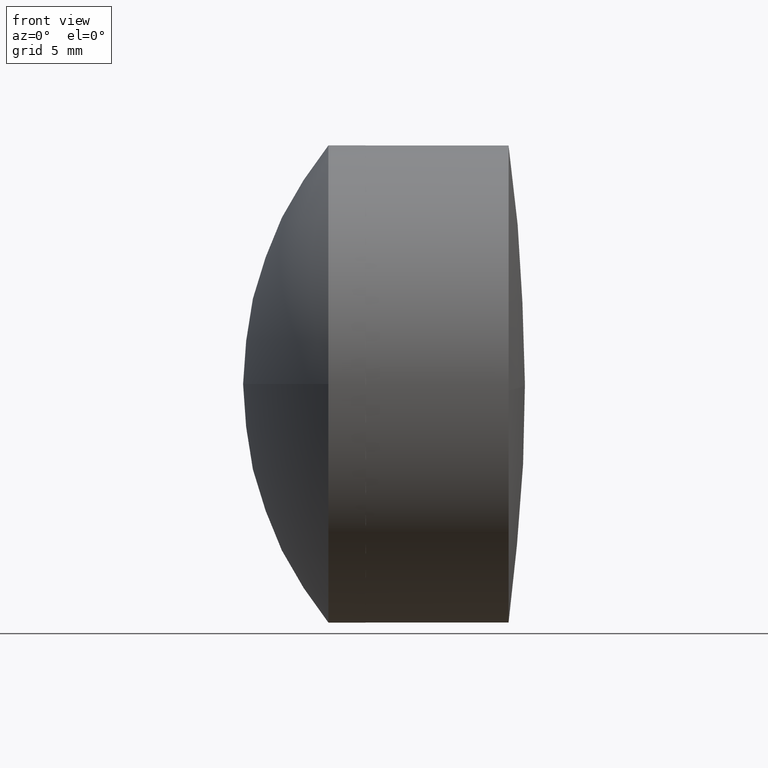
[diagram: clean part render]
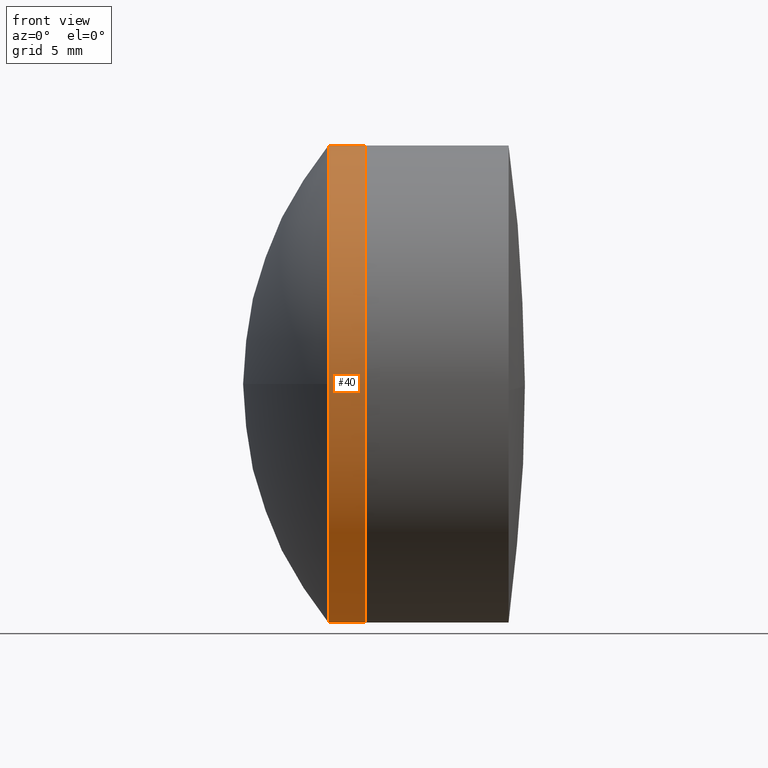
[diagram: same view with one face highlighted and labeled with its STEP entity id]
A machine part, front view. The second image highlights one B-rep face of the part: STEP entity #40.
In plain terms, the highlighted cylindrical surface (partial cylindrical patch) has radius 12.7 mm, axis along (-1, -0, -0).
Its self-contained STEP definition (entity closure, byte-faithful):
#12 = CARTESIAN_POINT ( 'NONE',  ( -33.15740189501624968, 19.33284803661706164, -1.555301434917138235E-15 ) ) ;
#13 = ORIENTED_EDGE ( 'NONE', *, *, #123, .T. ) ;
#19 = DIRECTION ( 'NONE',  ( -1.000000000000000000, -0.000000000000000000, -0.000000000000000000 ) ) ;
#20 = CIRCLE ( 'NONE', #72, 12.69999999999999929 ) ;
#26 = EDGE_CURVE ( 'NONE', #87, #283, #173, .T. ) ;
#32 = CARTESIAN_POINT ( 'NONE',  ( -33.15740189501624968, 32.03284803661706093, -12.69999999999999929 ) ) ;
#40 = ADVANCED_FACE ( 'NONE', ( #91 ), #292, .T. ) ;
#42 = DIRECTION ( 'NONE',  ( 0.000000000000000000, 0.000000000000000000, 1.000000000000000000 ) ) ;
#58 = EDGE_CURVE ( 'NONE', #237, #310, #366, .T. ) ;
#72 = AXIS2_PLACEMENT_3D ( 'NONE', #218, #152, #290 ) ;
#74 = EDGE_LOOP ( 'NONE', ( #317, #331, #13, #139, #137, #195 ) ) ;
#81 = AXIS2_PLACEMENT_3D ( 'NONE', #422, #145, #144 ) ;
#84 = CARTESIAN_POINT ( 'NONE',  ( -39.66995810697360270, 32.03284803661706093, 12.69999999999999929 ) ) ;
#87 = VERTEX_POINT ( 'NONE', #262 ) ;
#91 = FACE_OUTER_BOUND ( 'NONE', #74, .T. ) ;
#93 = AXIS2_PLACEMENT_3D ( 'NONE', #186, #118, #322 ) ;
#104 = EDGE_CURVE ( 'NONE', #237, #397, #214, .T. ) ;
#110 = EDGE_CURVE ( 'NONE', #131, #283, #251, .T. ) ;
#118 = DIRECTION ( 'NONE',  ( -1.000000000000000000, -0.000000000000000000, -0.000000000000000000 ) ) ;
#123 = EDGE_CURVE ( 'NONE', #310, #131, #20, .T. ) ;
#124 = CARTESIAN_POINT ( 'NONE',  ( -39.66995810697360270, 32.03284803661706093, -12.69999999999999929 ) ) ;
#131 = VERTEX_POINT ( 'NONE', #166 ) ;
#137 = ORIENTED_EDGE ( 'NONE', *, *, #26, .F. ) ;
#139 = ORIENTED_EDGE ( 'NONE', *, *, #110, .T. ) ;
#144 = DIRECTION ( 'NONE',  ( 0.000000000000000000, 0.000000000000000000, 1.000000000000000000 ) ) ;
#145 = DIRECTION ( 'NONE',  ( -1.000000000000000000, -0.000000000000000000, -0.000000000000000000 ) ) ;
#147 = CARTESIAN_POINT ( 'NONE',  ( -35.12901553471916571, 32.03284803661706093, 12.69999999999999929 ) ) ;
#152 = DIRECTION ( 'NONE',  ( -1.000000000000000000, -0.000000000000000000, -0.000000000000000000 ) ) ;
#156 = CARTESIAN_POINT ( 'NONE',  ( -35.12901553471916571, 32.03284803661706093, 0.000000000000000000 ) ) ;
#158 = VECTOR ( 'NONE', #426, 1000.000000000000000 ) ;
#166 = CARTESIAN_POINT ( 'NONE',  ( -33.15740189501624968, 32.03284803661706093, 12.69999999999999929 ) ) ;
#173 = CIRCLE ( 'NONE', #266, 12.69999999999999929 ) ;
#179 = DIRECTION ( 'NONE',  ( -1.000000000000000000, -0.000000000000000000, -0.000000000000000000 ) ) ;
#181 = DIRECTION ( 'NONE',  ( 0.000000000000000000, 0.000000000000000000, 1.000000000000000000 ) ) ;
#186 = CARTESIAN_POINT ( 'NONE',  ( -39.66995810697360270, 32.03284803661706093, 0.000000000000000000 ) ) ;
#195 = ORIENTED_EDGE ( 'NONE', *, *, #313, .F. ) ;
#209 = CARTESIAN_POINT ( 'NONE',  ( -35.12901553471916571, 32.03284803661706093, -12.69999999999999929 ) ) ;
#214 = LINE ( 'NONE', #124, #158 ) ;
#218 = CARTESIAN_POINT ( 'NONE',  ( -33.15740189501624968, 32.03284803661706093, 0.000000000000000000 ) ) ;
#221 = DIRECTION ( 'NONE',  ( -1.000000000000000000, -0.000000000000000000, -0.000000000000000000 ) ) ;
#224 = AXIS2_PLACEMENT_3D ( 'NONE', #226, #179, #181 ) ;
#226 = CARTESIAN_POINT ( 'NONE',  ( -33.15740189501624968, 32.03284803661706093, 0.000000000000000000 ) ) ;
#237 = VERTEX_POINT ( 'NONE', #32 ) ;
#251 = LINE ( 'NONE', #84, #401 ) ;
#262 = CARTESIAN_POINT ( 'NONE',  ( -35.12901553471916571, 19.33284803661705809, -1.555301434917138630E-15 ) ) ;
#266 = AXIS2_PLACEMENT_3D ( 'NONE', #156, #221, #42 ) ;
#283 = VERTEX_POINT ( 'NONE', #147 ) ;
#290 = DIRECTION ( 'NONE',  ( 0.000000000000000000, 0.000000000000000000, 1.000000000000000000 ) ) ;
#292 = CYLINDRICAL_SURFACE ( 'NONE', #93, 12.69999999999999929 ) ;
#310 = VERTEX_POINT ( 'NONE', #12 ) ;
#313 = EDGE_CURVE ( 'NONE', #397, #87, #369, .T. ) ;
#317 = ORIENTED_EDGE ( 'NONE', *, *, #104, .F. ) ;
#322 = DIRECTION ( 'NONE',  ( 0.000000000000000000, 0.000000000000000000, 1.000000000000000000 ) ) ;
#331 = ORIENTED_EDGE ( 'NONE', *, *, #58, .T. ) ;
#366 = CIRCLE ( 'NONE', #224, 12.69999999999999929 ) ;
#369 = CIRCLE ( 'NONE', #81, 12.69999999999999929 ) ;
#397 = VERTEX_POINT ( 'NONE', #209 ) ;
#401 = VECTOR ( 'NONE', #19, 1000.000000000000000 ) ;
#422 = CARTESIAN_POINT ( 'NONE',  ( -35.12901553471916571, 32.03284803661706093, 0.000000000000000000 ) ) ;
#426 = DIRECTION ( 'NONE',  ( -1.000000000000000000, -0.000000000000000000, -0.000000000000000000 ) ) ;